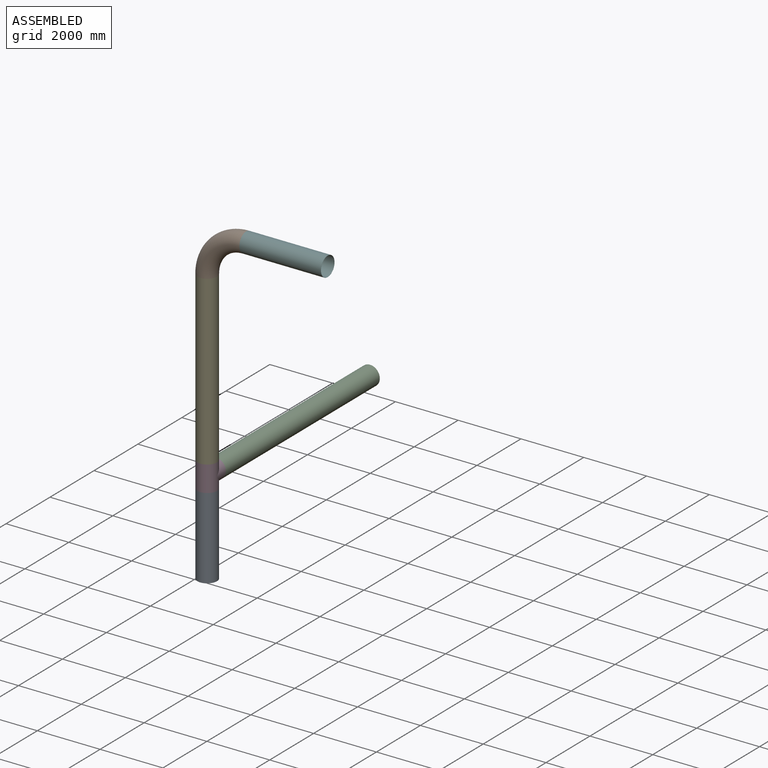
[diagram: assembled view]
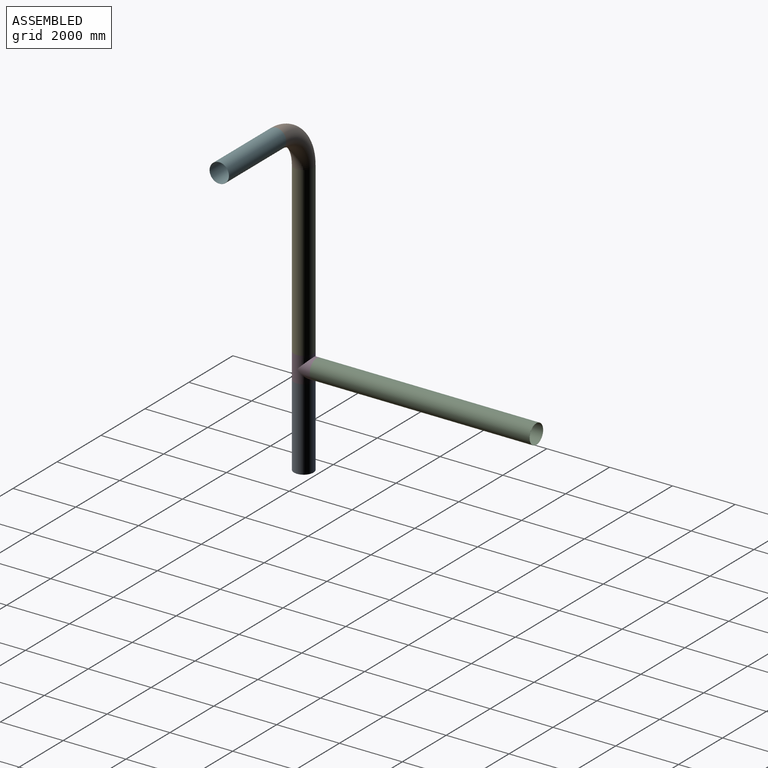
[diagram: assembled view, second angle]
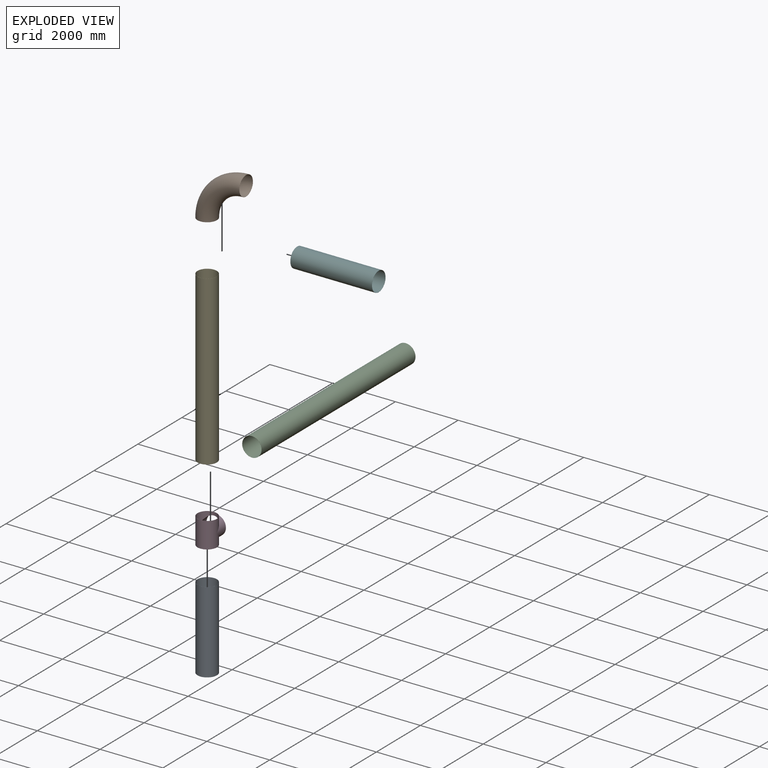
[diagram: exploded view]
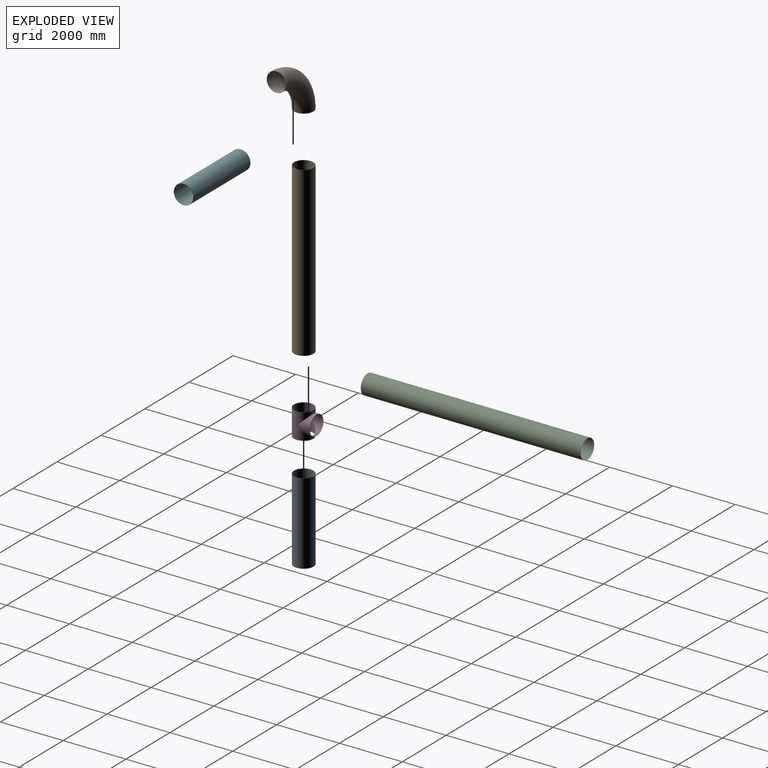
[diagram: exploded view, second angle]
ASSEMBLY  parts=6 mates=5
PART A: 4 faces, bbox 620x620x2600 mm
  f0: cylinder r=307mm len=2600mm, axis (0,0,-1), area 5015238.5mm2, adj f2,f3
  f1: cylinder r=310mm len=2600mm, axis (0,0,-1), area 5064247.4mm2, adj f2,f3
  f2: plane 620x620mm, normal (0,0,1), area 5815.1mm2, adj f0,f1
  f3: plane 620x620mm, normal (0,0,-1), area 5815.1mm2, adj f0,f1
PART B: 4 faces, bbox 620x1677.7x1677.7 mm
  f0: torus R=1240mm, axis (-1,0,0), area 3757161mm2, adj f2,f3
  f1: torus R=1240mm, axis (-1,0,0), area 3793875.9mm2, adj f2,f3
  f2: plane 620x620mm, normal (0,1,0), area 5815.1mm2, adj f0,f1
  f3: plane 620x620mm, normal (0,0,1), area 5815.1mm2, adj f0,f1
PART C: 4 faces, bbox 620x620x7000 mm
  f0: cylinder r=307mm len=7000mm, axis (0,0,-1), area 13502565.2mm2, adj f2,f3
  f1: cylinder r=310mm len=7000mm, axis (0,0,-1), area 13634512.1mm2, adj f2,f3
  f2: plane 620x620mm, normal (0,0,1), area 5815.1mm2, adj f0,f1
  f3: plane 620x620mm, normal (0,0,-1), area 5815.1mm2, adj f0,f1
PART D: 7 faces, bbox 720x620x820 mm
  f0: cylinder r=307mm len=820mm, axis (0,0,-1), area 1204733.4mm2, adj f2,f3,f6
  f1: cylinder r=310mm len=820mm, axis (0,0,-1), area 1212786mm2, adj f2,f3,f5
  f2: plane 620x620mm, normal (0,0,1), area 5815.1mm2, adj f0,f1
  f3: plane 620x620mm, normal (0,0,-1), area 5815.1mm2, adj f0,f1
  f4: plane 620x620mm, normal (-1,0,0), area 5815.1mm2, adj f5,f6
  f5: cylinder r=310mm len=620mm, axis (-1,0,0), area 414193.2mm2, adj f1,f4
  f6: cylinder r=307mm len=614mm, axis (-1,0,0), area 413868.8mm2, adj f0,f4
PART E: 4 faces, bbox 620x620x5350 mm
  f0: cylinder r=310mm len=5350mm, axis (0,0,-1), area 10420662.8mm2, adj f2,f3
  f1: cylinder r=307mm len=5350mm, axis (0,0,-1), area 10319817.7mm2, adj f2,f3
  f2: plane 620x620mm, normal (0,0,1), area 5815.1mm2, adj f0,f1
  f3: plane 620x620mm, normal (0,0,-1), area 5815.1mm2, adj f0,f1
PART F: same geometry as A
PLACE A t=(3095.61,-867.34,5244.15)mm
PLACE B rot(axis=(-0.58,0.58,-0.58),120deg) t=(1056.87,-867.34,15254.15)mm
PLACE C rot(axis=(0.58,0.58,-0.58),120deg) t=(-183.13,6542.66,3997.48)mm
PLACE D rot(axis=(0,0,-1),90deg) t=(-183.13,-867.34,7844.15)mm
PLACE E rot(axis=(0,-1,0),180deg) t=(-2558.19,-938.19,14014.15)mm
PLACE F rot(axis=(0.58,-0.58,-0.58),120deg) t=(3656.87,-4146.07,15254.15)mm
MATE fastened B.f3 <-> F.f0  axis (1,0,0) through (1056.87,-867.34,15254.15)mm
MATE fastened D.f0 <-> A.f0  axis (0,0,-1) through (-183.13,-867.34,7844.15)mm
MATE fastened D.f0 <-> E.f0  axis (0,0,1) through (-183.13,-867.34,8664.15)mm
MATE fastened C.f0 <-> D.f5  axis (0,-1,0) through (-183.13,-457.34,8254.15)mm
MATE fastened E.f0 <-> B.f2  axis (0,0,1) through (-183.13,-867.34,14014.15)mm
